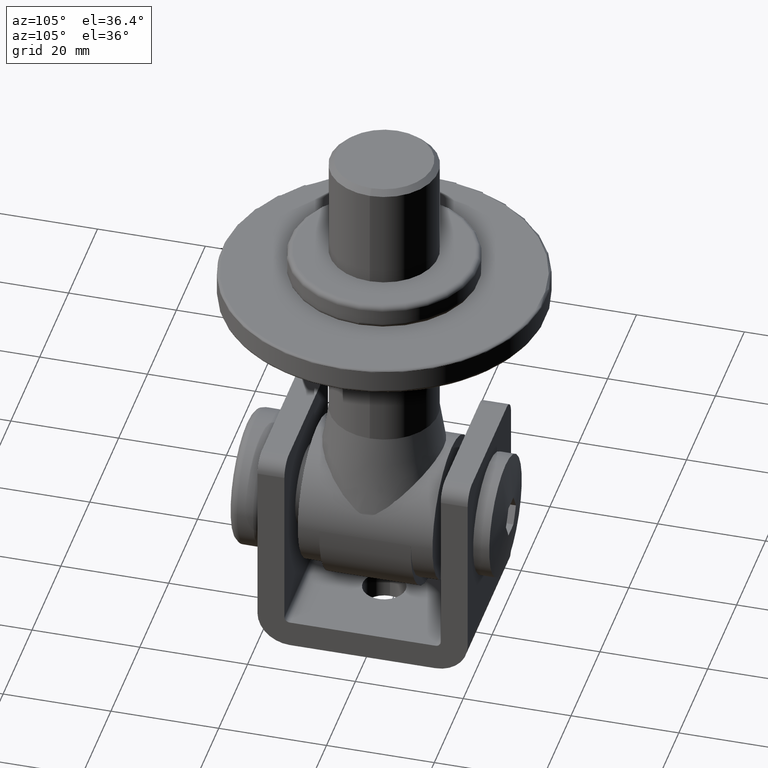
[diagram: clean part render]
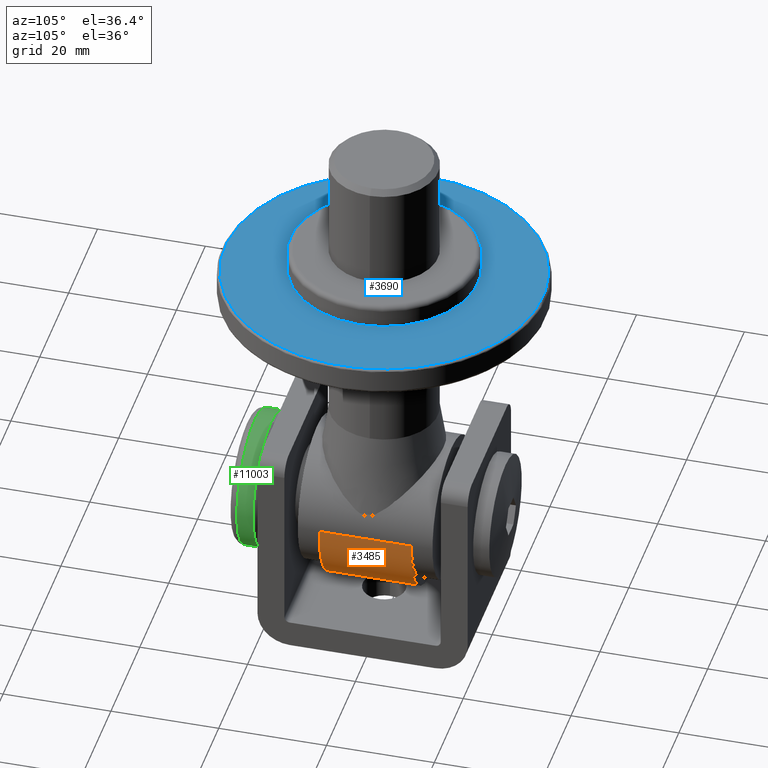
[diagram: same view with three faces highlighted in distinct colors, each labeled with its STEP entity id]
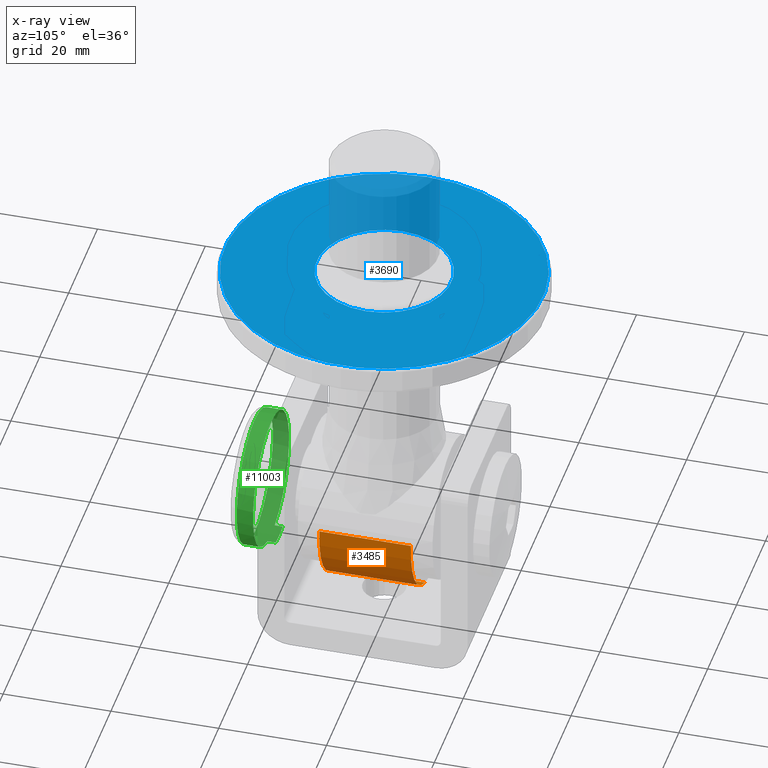
[diagram: x-ray of the same camera — body ghosted, the three highlighted faces saturated]
A machine part, auxiliary view with three faces highlighted in distinct colors.
The next image is the same camera in x-ray (body ghosted, the three faces saturated) — at least one of them is partly hidden behind the body in this view.
Their STEP definitions:

[orange] entity #3485 — the highlighted cylindrical surface (partial cylindrical patch) has radius 15 mm, axis along (-0, -1, -0).
#484 = DIRECTION ( 'NONE',  ( 0.000000000000000000, 1.000000000000000000, -0.000000000000000000 ) ) ;
#1292 = CARTESIAN_POINT ( 'NONE',  ( 3.426044219779641242, -8.500000000000000000, -15.14479754992701643 ) ) ;
#1511 = VERTEX_POINT ( 'NONE', #7799 ) ;
#1923 = CARTESIAN_POINT ( 'NONE',  ( 13.25000000000000178, -8.500000000000000000, 3.816391647148974977E-14 ) ) ;
#2538 = CARTESIAN_POINT ( 'NONE',  ( 13.25000000000000178, 8.500000000000000000, 3.816391647148975608E-14 ) ) ;
#2607 = CARTESIAN_POINT ( 'NONE',  ( -1.713022109889819289, 8.500000000000000000, -1.052601225036499111 ) ) ;
#2783 = CIRCLE ( 'NONE', #13823, 15.00000000000000355 ) ;
#2812 = CARTESIAN_POINT ( 'NONE',  ( -1.713022109889819289, -8.500000000000000000, -1.052601225036499111 ) ) ;
#2829 = DIRECTION ( 'NONE',  ( -0.000000000000000000, -1.000000000000000000, -0.000000000000000000 ) ) ;
#2943 = VERTEX_POINT ( 'NONE', #2538 ) ;
#3096 = EDGE_CURVE ( 'NONE', #1511, #10862, #9956, .T. ) ;
#3215 = AXIS2_PLACEMENT_3D ( 'NONE', #4112, #484, #15126 ) ;
#3485 = ADVANCED_FACE ( 'NONE', ( #6518 ), #4068, .T. ) ;
#3905 = DIRECTION ( 'NONE',  ( -0.000000000000000000, -1.000000000000000000, -0.000000000000000000 ) ) ;
#4068 = CYLINDRICAL_SURFACE ( 'NONE', #9894, 15.00000000000000000 ) ;
#4112 = CARTESIAN_POINT ( 'NONE',  ( -1.713022109889819289, 8.500000000000000000, -1.052601225036499111 ) ) ;
#5823 = ORIENTED_EDGE ( 'NONE', *, *, #3096, .F. ) ;
#5930 = LINE ( 'NONE', #9032, #13687 ) ;
#6518 = FACE_OUTER_BOUND ( 'NONE', #11608, .T. ) ;
#7469 = CIRCLE ( 'NONE', #3215, 15.00000000000000355 ) ;
#7505 = DIRECTION ( 'NONE',  ( 0.000000000000000000, 0.000000000000000000, 1.000000000000000000 ) ) ;
#7799 = CARTESIAN_POINT ( 'NONE',  ( 3.426044219779641242, 8.500000000000000000, -15.14479754992701643 ) ) ;
#8547 = EDGE_CURVE ( 'NONE', #12190, #10862, #2783, .T. ) ;
#8632 = ORIENTED_EDGE ( 'NONE', *, *, #10910, .T. ) ;
#8796 = ORIENTED_EDGE ( 'NONE', *, *, #8547, .T. ) ;
#8881 = DIRECTION ( 'NONE',  ( 0.000000000000000000, 1.000000000000000000, -0.000000000000000000 ) ) ;
#9032 = CARTESIAN_POINT ( 'NONE',  ( 13.25000000000000178, 8.500000000000000000, 3.816391647148974977E-14 ) ) ;
#9684 = EDGE_CURVE ( 'NONE', #2943, #1511, #7469, .T. ) ;
#9894 = AXIS2_PLACEMENT_3D ( 'NONE', #2607, #3905, #11058 ) ;
#9956 = LINE ( 'NONE', #10073, #12760 ) ;
#10073 = CARTESIAN_POINT ( 'NONE',  ( 3.426044219779641242, 8.500000000000000000, -15.14479754992701643 ) ) ;
#10862 = VERTEX_POINT ( 'NONE', #1292 ) ;
#10910 = EDGE_CURVE ( 'NONE', #2943, #12190, #5930, .T. ) ;
#11058 = DIRECTION ( 'NONE',  ( 0.000000000000000000, 0.000000000000000000, -1.000000000000000000 ) ) ;
#11608 = EDGE_LOOP ( 'NONE', ( #8796, #5823, #13416, #8632 ) ) ;
#12190 = VERTEX_POINT ( 'NONE', #1923 ) ;
#12760 = VECTOR ( 'NONE', #2829, 1000.000000000000000 ) ;
#13416 = ORIENTED_EDGE ( 'NONE', *, *, #9684, .F. ) ;
#13687 = VECTOR ( 'NONE', #13830, 1000.000000000000000 ) ;
#13823 = AXIS2_PLACEMENT_3D ( 'NONE', #2812, #8881, #7505 ) ;
#13830 = DIRECTION ( 'NONE',  ( -0.000000000000000000, -1.000000000000000000, -0.000000000000000000 ) ) ;
#15126 = DIRECTION ( 'NONE',  ( 0.000000000000000000, 0.000000000000000000, 1.000000000000000000 ) ) ;

[blue] entity #3690 — the highlighted planar face has unit normal (0, 0, -1).
#1101 = AXIS2_PLACEMENT_3D ( 'NONE', #9602, #13337, #5921 ) ;
#1540 = CARTESIAN_POINT ( 'NONE',  ( 29.50000000000000000, 0.000000000000000000, 0.000000000000000000 ) ) ;
#2204 = FACE_BOUND ( 'NONE', #10015, .T. ) ;
#3690 = ADVANCED_FACE ( 'NONE', ( #12211, #2204 ), #3725, .F. ) ;
#3725 = PLANE ( 'NONE',  #9371 ) ;
#4794 = DIRECTION ( 'NONE',  ( 1.000000000000000000, 0.000000000000000000, -0.000000000000000000 ) ) ;
#5399 = CIRCLE ( 'NONE', #1101, 29.50000000000000000 ) ;
#5921 = DIRECTION ( 'NONE',  ( 1.000000000000000000, 0.000000000000000000, 0.000000000000000000 ) ) ;
#5983 = DIRECTION ( 'NONE',  ( 0.000000000000000000, 0.000000000000000000, 1.000000000000000000 ) ) ;
#6114 = ORIENTED_EDGE ( 'NONE', *, *, #6359, .T. ) ;
#6359 = EDGE_CURVE ( 'NONE', #6559, #6559, #10354, .T. ) ;
#6559 = VERTEX_POINT ( 'NONE', #10090 ) ;
#6623 = AXIS2_PLACEMENT_3D ( 'NONE', #10368, #14423, #13137 ) ;
#9239 = EDGE_CURVE ( 'NONE', #13139, #13139, #5399, .T. ) ;
#9371 = AXIS2_PLACEMENT_3D ( 'NONE', #10937, #5983, #4794 ) ;
#9602 = CARTESIAN_POINT ( 'NONE',  ( 0.000000000000000000, 0.000000000000000000, 0.000000000000000000 ) ) ;
#10015 = EDGE_LOOP ( 'NONE', ( #6114 ) ) ;
#10090 = CARTESIAN_POINT ( 'NONE',  ( 12.50000000000000000, 0.000000000000000000, 0.000000000000000000 ) ) ;
#10354 = CIRCLE ( 'NONE', #6623, 12.50000000000000000 ) ;
#10368 = CARTESIAN_POINT ( 'NONE',  ( 0.000000000000000000, 0.000000000000000000, 0.000000000000000000 ) ) ;
#10937 = CARTESIAN_POINT ( 'NONE',  ( 0.000000000000000000, 0.000000000000000000, 0.000000000000000000 ) ) ;
#10998 = EDGE_LOOP ( 'NONE', ( #13040 ) ) ;
#12211 = FACE_OUTER_BOUND ( 'NONE', #10998, .T. ) ;
#13040 = ORIENTED_EDGE ( 'NONE', *, *, #9239, .T. ) ;
#13137 = DIRECTION ( 'NONE',  ( 1.000000000000000000, 0.000000000000000000, 0.000000000000000000 ) ) ;
#13139 = VERTEX_POINT ( 'NONE', #1540 ) ;
#13337 = DIRECTION ( 'NONE',  ( -0.000000000000000000, -0.000000000000000000, -1.000000000000000000 ) ) ;
#14423 = DIRECTION ( 'NONE',  ( 0.000000000000000000, 0.000000000000000000, 1.000000000000000000 ) ) ;

[green] entity #11003 — the highlighted cylindrical surface (bore or boss wall) has radius 12.5 mm, axis along (0, 1, -0).
#360 = EDGE_LOOP ( 'NONE', ( #9363 ) ) ;
#499 = CARTESIAN_POINT ( 'NONE',  ( -2.500000000000000000, 4.500000000000003553, 12.24744871391589029 ) ) ;
#577 = CIRCLE ( 'NONE', #1028, 12.50000000000000000 ) ;
#649 = ORIENTED_EDGE ( 'NONE', *, *, #8032, .T. ) ;
#1028 = AXIS2_PLACEMENT_3D ( 'NONE', #1169, #8386, #5933 ) ;
#1169 = CARTESIAN_POINT ( 'NONE',  ( 0.000000000000000000, 5.999999999999991118, 0.000000000000000000 ) ) ;
#1692 = CARTESIAN_POINT ( 'NONE',  ( -2.500000000000004885, 5.999999999999998224, 12.24744871391589029 ) ) ;
#1972 = DIRECTION ( 'NONE',  ( 0.000000000000000000, 0.000000000000000000, -1.000000000000000000 ) ) ;
#2214 = VECTOR ( 'NONE', #14449, 1000.000000000000000 ) ;
#2316 = DIRECTION ( 'NONE',  ( -0.000000000000000000, 1.000000000000000000, -0.000000000000000000 ) ) ;
#2362 = EDGE_LOOP ( 'NONE', ( #13741, #649, #2860, #8084 ) ) ;
#2650 = CIRCLE ( 'NONE', #7368, 12.50000000000000000 ) ;
#2798 = CARTESIAN_POINT ( 'NONE',  ( 0.000000000000000000, 1.500000000000001332, 12.50000000000000000 ) ) ;
#2860 = ORIENTED_EDGE ( 'NONE', *, *, #6283, .T. ) ;
#3117 = AXIS2_PLACEMENT_3D ( 'NONE', #5225, #6540, #5377 ) ;
#3607 = EDGE_CURVE ( 'NONE', #13960, #5709, #10513, .T. ) ;
#3733 = CIRCLE ( 'NONE', #8774, 12.50000000000000000 ) ;
#4367 = CARTESIAN_POINT ( 'NONE',  ( 0.000000000000000000, 4.500000000000003553, 0.000000000000000000 ) ) ;
#4812 = EDGE_CURVE ( 'NONE', #14731, #14731, #2650, .T. ) ;
#5005 = CARTESIAN_POINT ( 'NONE',  ( 2.500000000000004885, 5.999999999999998224, 12.24744871391589029 ) ) ;
#5009 = FACE_OUTER_BOUND ( 'NONE', #360, .T. ) ;
#5225 = CARTESIAN_POINT ( 'NONE',  ( 0.000000000000000000, 39.99999999999999289, 0.000000000000000000 ) ) ;
#5377 = DIRECTION ( 'NONE',  ( 0.000000000000000000, 0.000000000000000000, 1.000000000000000000 ) ) ;
#5709 = VERTEX_POINT ( 'NONE', #5005 ) ;
#5909 = CARTESIAN_POINT ( 'NONE',  ( 0.000000000000000000, 1.500000000000001332, 0.000000000000000000 ) ) ;
#5920 = CARTESIAN_POINT ( 'NONE',  ( -2.500000000000004885, 5.999999999999998224, 12.24744871391589029 ) ) ;
#5933 = DIRECTION ( 'NONE',  ( 0.000000000000000000, 0.000000000000000000, 1.000000000000000000 ) ) ;
#6283 = EDGE_CURVE ( 'NONE', #10458, #13960, #3733, .T. ) ;
#6540 = DIRECTION ( 'NONE',  ( -0.000000000000000000, 1.000000000000000000, -0.000000000000000000 ) ) ;
#7368 = AXIS2_PLACEMENT_3D ( 'NONE', #5909, #2316, #10757 ) ;
#8032 = EDGE_CURVE ( 'NONE', #10006, #10458, #9565, .T. ) ;
#8084 = ORIENTED_EDGE ( 'NONE', *, *, #3607, .T. ) ;
#8386 = DIRECTION ( 'NONE',  ( -0.000000000000000000, -1.000000000000000000, -0.000000000000000000 ) ) ;
#8774 = AXIS2_PLACEMENT_3D ( 'NONE', #4367, #11679, #1972 ) ;
#8969 = CYLINDRICAL_SURFACE ( 'NONE', #3117, 12.50000000000000000 ) ;
#9363 = ORIENTED_EDGE ( 'NONE', *, *, #4812, .T. ) ;
#9497 = DIRECTION ( 'NONE',  ( -0.000000000000000000, 1.000000000000000000, -0.000000000000000000 ) ) ;
#9565 = LINE ( 'NONE', #5920, #2214 ) ;
#10006 = VERTEX_POINT ( 'NONE', #1692 ) ;
#10458 = VERTEX_POINT ( 'NONE', #499 ) ;
#10513 = LINE ( 'NONE', #12963, #13340 ) ;
#10757 = DIRECTION ( 'NONE',  ( 0.000000000000000000, 0.000000000000000000, 1.000000000000000000 ) ) ;
#11003 = ADVANCED_FACE ( 'NONE', ( #5009, #15227 ), #8969, .T. ) ;
#11679 = DIRECTION ( 'NONE',  ( 0.000000000000000000, -1.000000000000000000, 0.000000000000000000 ) ) ;
#12810 = CARTESIAN_POINT ( 'NONE',  ( 2.500000000000000000, 4.500000000000003553, 12.24744871391589029 ) ) ;
#12963 = CARTESIAN_POINT ( 'NONE',  ( 2.500000000000000000, 4.500000000000003553, 12.24744871391589029 ) ) ;
#13340 = VECTOR ( 'NONE', #9497, 1000.000000000000000 ) ;
#13741 = ORIENTED_EDGE ( 'NONE', *, *, #15590, .T. ) ;
#13960 = VERTEX_POINT ( 'NONE', #12810 ) ;
#14449 = DIRECTION ( 'NONE',  ( 0.000000000000000000, -1.000000000000000000, 0.000000000000000000 ) ) ;
#14731 = VERTEX_POINT ( 'NONE', #2798 ) ;
#15227 = FACE_OUTER_BOUND ( 'NONE', #2362, .T. ) ;
#15590 = EDGE_CURVE ( 'NONE', #5709, #10006, #577, .T. ) ;